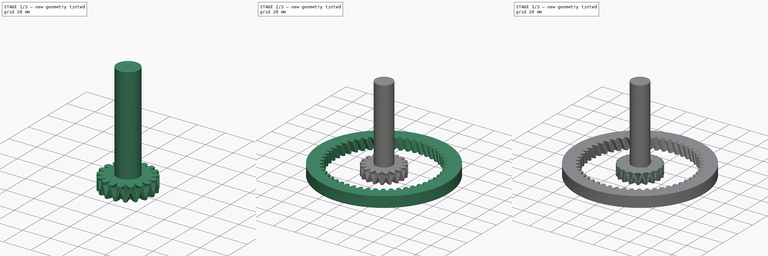
[diagram: build sequence overview — one tinted view per stage of 3, left to right]
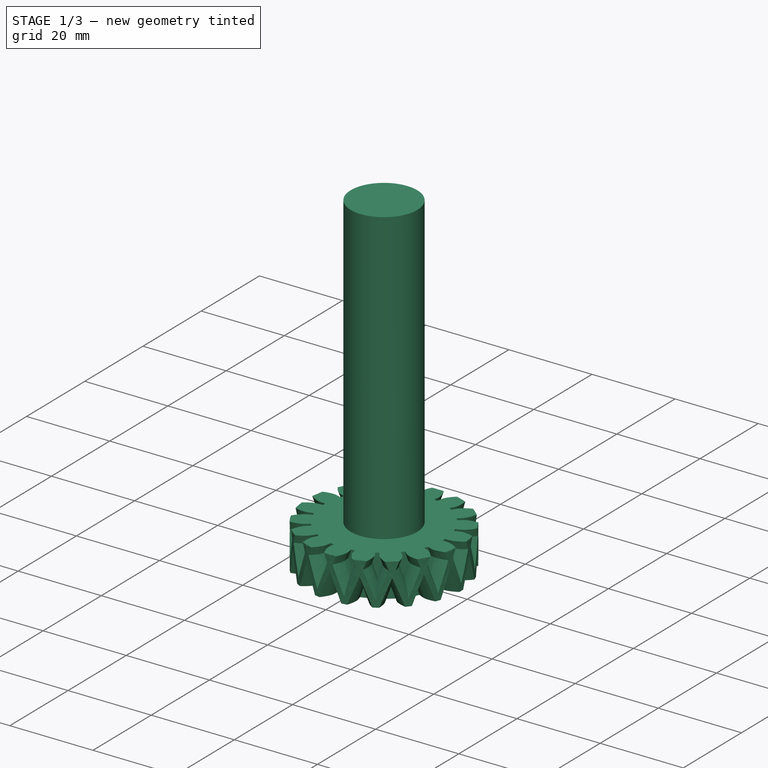
[diagram: stage 1 of 3 — iso view after this stage's code; geometry added in this stage tinted green]
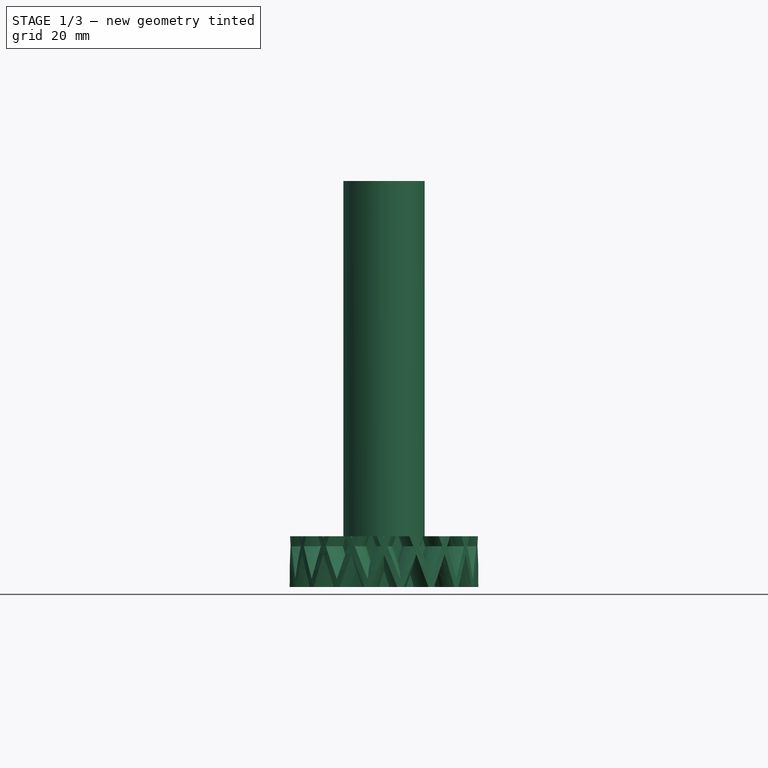
[diagram: stage 1 of 3 — front view after this stage's code; geometry added in this stage tinted green]
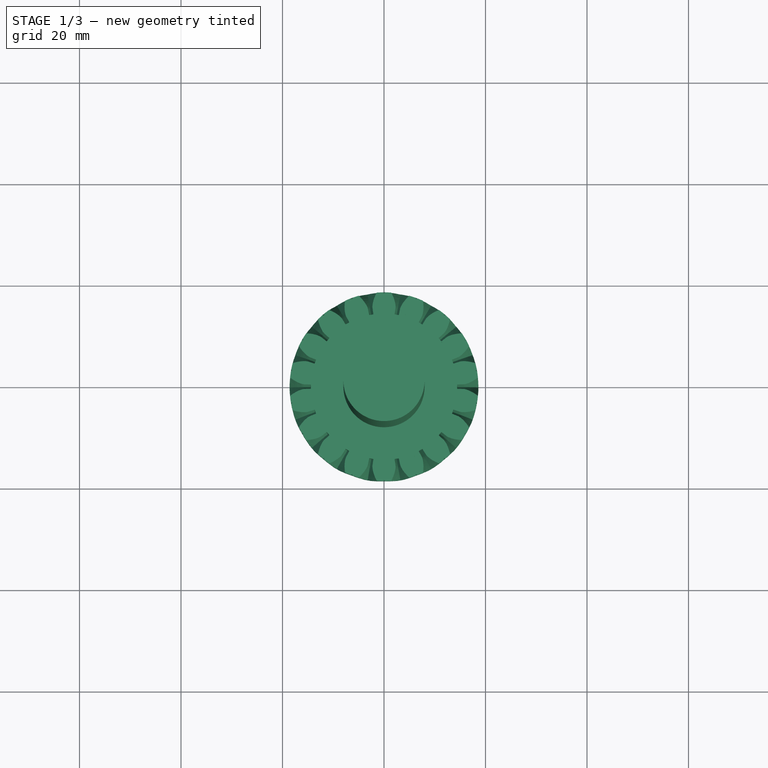
[diagram: stage 1 of 3 — top view after this stage's code; geometry added in this stage tinted green]
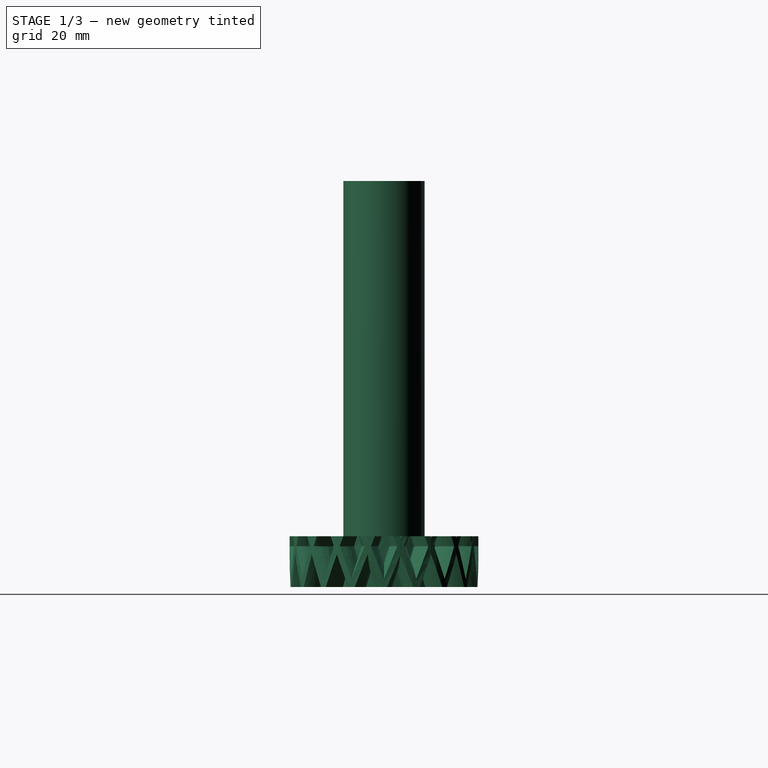
[diagram: stage 1 of 3 — right view after this stage's code; geometry added in this stage tinted green]
FCSTD DOCUMENT  (FreeCAD 0.20R29177 +426 (Git))
Label: project_15
License: All rights reserved
LicenseURL: https://en.wikipedia.org/wiki/All_rights_reserved
objects: PartDesign::CoordinateSystem×12, PartDesign::Body×9, PartDesign::FeaturePython×6, App::DocumentObjectGroup×3, Sketcher::SketchObject×2, App::FeaturePython×1, PartDesign::Pocket×1, App::Part×1, PartDesign::Pad×1
note: 33 computed .brp shape members not serialized (recipe doc carries the construction recipe); baked Part::Feature solids carry a one-line shape summary decoded from their .brp

FEATURE [PartDesign::CoordinateSystem] LCS_Origin
  AttacherType = Attacher::AttachEngine3D
  MapMode = 2
  Support = -> [X_Axis]
FEATURE [App::DocumentObjectGroup] Constraints
FEATURE [App::FeaturePython] Variables  # WARN: FeaturePython — macro-defined, semantics opaque (R4)
  Type = App::PropertyContainer
FEATURE [App::DocumentObjectGroup] Configurations
FEATURE [PartDesign::CoordinateSystem] LCS_Origin001
  AttacherType = Attacher::AttachEngine3D
  MapMode = 2
  Support = -> [X_Axis001]
FEATURE [PartDesign::CoordinateSystem] LCS_Origin002
  AttacherType = Attacher::AttachEngine3D
  MapMode = 2
  Support = -> [X_Axis002]
FEATURE [PartDesign::CoordinateSystem] LCS_Origin003
  AttacherType = Attacher::AttachEngine3D
  MapMode = 2
  Support = -> [X_Axis003]
FEATURE [PartDesign::CoordinateSystem] LCS_Origin004
  AttacherType = Attacher::AttachEngine3D
  MapMode = 2
  Support = -> [X_Axis004]
FEATURE [PartDesign::Body] __plate  label="1-plate"
  Group = -> [LCS_Origin004]
  Origin = -> Origin004
FEATURE [PartDesign::CoordinateSystem] LCS_Origin005
  AttacherType = Attacher::AttachEngine3D
  MapMode = 2
  Support = -> [X_Axis005]
FEATURE [PartDesign::CoordinateSystem] LCS_Origin006
  AttacherType = Attacher::AttachEngine3D
  MapMode = 2
  Support = -> [X_Axis006]
FEATURE [PartDesign::CoordinateSystem] LCS_Origin007
  AttacherType = Attacher::AttachEngine3D
  MapMode = 2
  Support = -> [X_Axis007]
FEATURE [PartDesign::CoordinateSystem] LCS_Origin008
  AttacherType = Attacher::AttachEngine3D
  MapMode = 2
  Support = -> [X_Axis008]
FEATURE [PartDesign::Body] __plate001  label="2-plate"
  Group = -> [LCS_Origin008]
  Origin = -> Origin008
FEATURE [PartDesign::CoordinateSystem] LCS_Origin009
  AttacherType = Attacher::AttachEngine3D
  MapMode = 2
  Support = -> [X_Axis009]
FEATURE [PartDesign::Body] housing
  Group = -> [LCS_Origin009]
  Origin = -> Origin009
FEATURE [PartDesign::FeaturePython] InvoluteGear001  # WARN: FeaturePython — macro-defined, semantics opaque (R4)
  AttacherType = Attacher::AttachEngine3D
  addendum_diameter = 37.2
  angular_backlash = 0
  axle_hole = false
  axle_holesize = 10
  backlash = 0
  clearance = 0.25
  double_helix = false
  head = 0
  head_fillet = 0
  height = 10
  helix_angle = -20
  module = 1.86
  num_teeth = 18
  numpoints = 20
  offset_hole = false
  offset_holeoffset = 10
  offset_holesize = 10
  pitch_diameter = 33.48
  pressure_angle = 20
  properties_from_tool = false
  reversed_backlash = false
  root_diameter = 28.83
  root_fillet = 0
  shift = 0
  simple = false
  transverse_pitch = 5.84336
  traverse_module = 1.86
  undercut = false
  version = 1.3.0
  expr: angular_backlash = backlash / pitch_diameter * 360° / pi
FEATURE [PartDesign::FeaturePython] InvoluteGear  # WARN: FeaturePython — macro-defined, semantics opaque (R4)
  AttacherType = Attacher::AttachEngine3D
  addendum_diameter = 37.2
  angular_backlash = 0
  axle_hole = false
  axle_holesize = 10
  backlash = 0
  clearance = 0.25
  double_helix = false
  head = 0
  head_fillet = 0
  height = 10
  helix_angle = 20
  module = 1.86
  num_teeth = 18
  numpoints = 20
  offset_hole = false
  offset_holeoffset = 10
  offset_holesize = 10
  pitch_diameter = 33.48
  pressure_angle = 20
  properties_from_tool = false
  reversed_backlash = false
  root_diameter = 28.83
  root_fillet = 0
  shift = 0
  simple = false
  transverse_pitch = 5.84336
  traverse_module = 1.86
  undercut = false
  version = 1.3.0
  expr: angular_backlash = backlash / pitch_diameter * 360° / pi
FEATURE [PartDesign::Body] __planet  label="1-planet"
  Group = -> [LCS_Origin001,InvoluteGear,Sketch,Pocket]
  Origin = -> Origin001
  Tip = -> Pocket
FEATURE [PartDesign::CoordinateSystem] __p_c  label="1-p-c"
  AttacherType = Attacher::AttachEngine3D
  MapMode = 11
  Placement = pos=(0,0,0) rot=(0,0,1;1.5708rad)
  Support = -> [Pocket]
FEATURE [App::Part] Assembly
  AssemblyType = Part::Link
  Group = -> [LCS_Origin,Constraints,Variables,Configurations,__p_c]
  Origin = -> Origin
  Type = Assembly
FEATURE [Sketcher::SketchObject] Sketch001
  FullyConstrained = true
  MapMode = 5
  Support = -> [XY_Plane002]
  sketch-geometry (1):
    g0: Circle CenterX=0 CenterY=0 CenterZ=0 NormalX=0 NormalY=0 NormalZ=1 AngleXU=0 Radius=8
  constraints (2):
    c: Coincident(g0,g-1)
    c: Diameter(g0) = 16
FEATURE [PartDesign::Pad] Pad
  BaseFeature = -> InvoluteGear001
  Direction = (0,0,1)
  Length = 80
  Length2 = 10
  Profile = -> Sketch001
  ReferenceAxis = -> Sketch001 [N_Axis]
  Refine = true
  Type = 0
FEATURE [PartDesign::CoordinateSystem] __s_  label="1-s-c"
  AttacherType = Attacher::AttachEngine3D
  MapMode = 11
  Placement = pos=(0,0,80) rot=(0,0,1;1.5708rad)
  Support = -> [Pad]
FEATURE [PartDesign::Body] __sun  label="1-sun"
  Group = -> [LCS_Origin002,InvoluteGear001,Sketch001,Pad,__s_]
  Origin = -> Origin002
  Tip = -> Pad
FEATURE [App::DocumentObjectGroup] Parts
  Group = -> [__planet,__sun,__ring,__plate,__planet001,__sun001,__ring001,__plate001,housing]
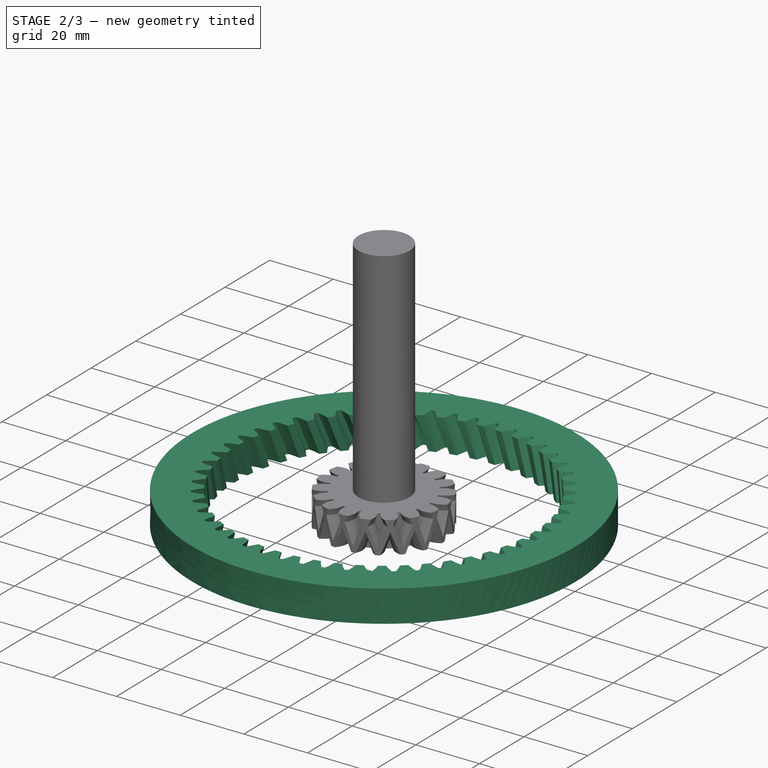
[diagram: stage 2 of 3 — iso view after this stage's code; geometry added in this stage tinted green]
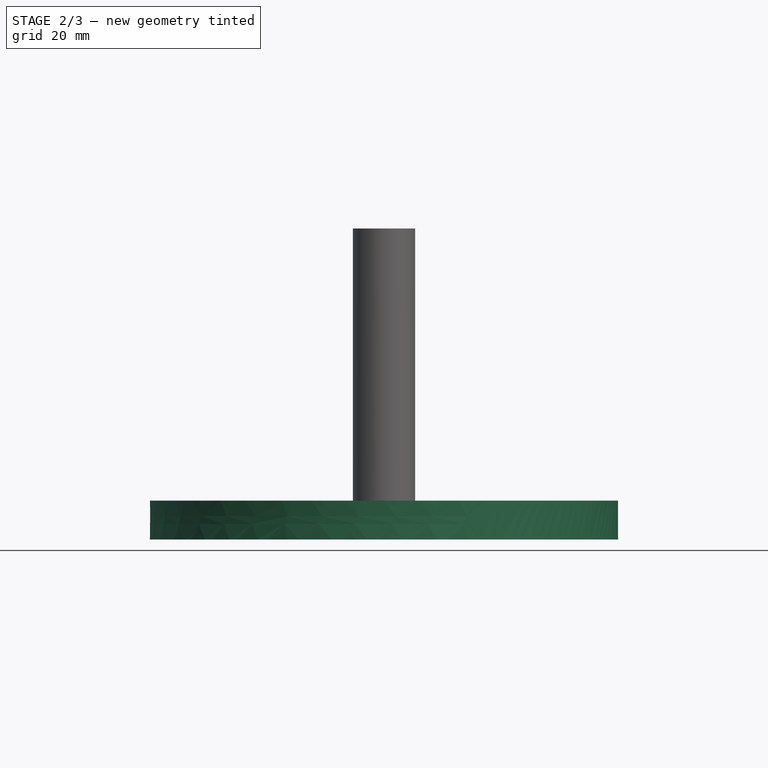
[diagram: stage 2 of 3 — front view after this stage's code; geometry added in this stage tinted green]
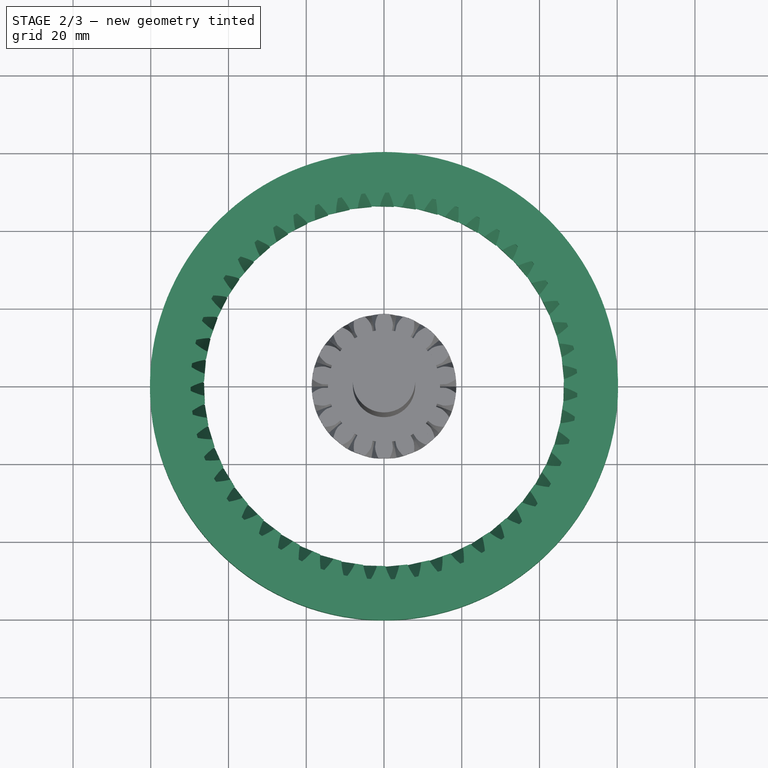
[diagram: stage 2 of 3 — top view after this stage's code; geometry added in this stage tinted green]
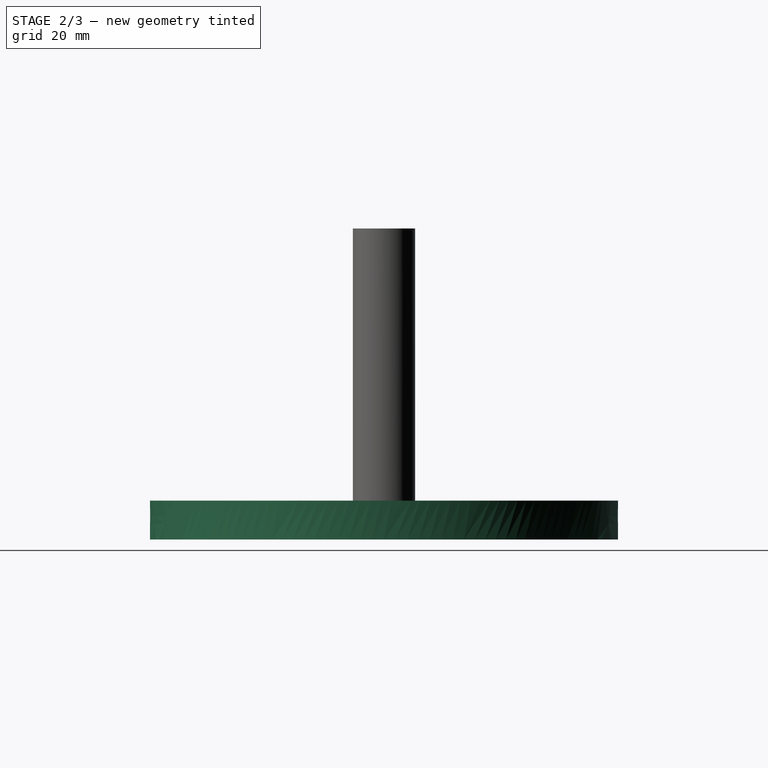
[diagram: stage 2 of 3 — right view after this stage's code; geometry added in this stage tinted green]
FEATURE [PartDesign::Body] __sun001  label="2-sun"
  Group = -> [LCS_Origin006,InvoluteGear003]
  Origin = -> Origin006
  Tip = -> InvoluteGear003
FEATURE [PartDesign::FeaturePython] InternalInvoluteGear001  # WARN: FeaturePython — macro-defined, semantics opaque (R4)
  AttacherType = Attacher::AttachEngine3D
  addendum_diameter = 92.628
  angular_backlash = 0
  backlash = 0
  clearance = 0.25
  double_helix = false
  head = -0.4
  head_fillet = 0
  height = 10
  helix_angle = 20
  module = 1.86
  num_teeth = 51
  numpoints = 20
  outside_diameter = 120.44
  pitch_diameter = 94.86
  pressure_angle = 20
  properties_from_tool = false
  reversed_backlash = false
  root_diameter = 99.51
  root_fillet = 0
  shift = 0
  simple = false
  thickness = 12.79
  transverse_pitch = 5.84336
  version = 1.3.0
  expr: angular_backlash = backlash / pitch_diameter * 360° / pi
FEATURE [PartDesign::Body] __ring001  label="2-ring"
  Group = -> [LCS_Origin007,InternalInvoluteGear001]
  Origin = -> Origin007
  Tip = -> InternalInvoluteGear001
FEATURE [Sketcher::SketchObject] Sketch
  FullyConstrained = true
  MapMode = 5
  Support = -> [XY_Plane001]
  sketch-geometry (1):
    g0: Circle CenterX=0 CenterY=0 CenterZ=0 NormalX=0 NormalY=0 NormalZ=1 AngleXU=0 Radius=3
  constraints (2):
    c: Coincident(g0,g-1)
    c: Diameter(g0) = 6
FEATURE [PartDesign::Pocket] Pocket
  BaseFeature = -> InvoluteGear
  Direction = (0,0,-1)
  Length = 12
  Length2 = 5
  Profile = -> Sketch
  ReferenceAxis = -> Sketch [N_Axis]
  Refine = true
  Reversed = true
  Type = 0
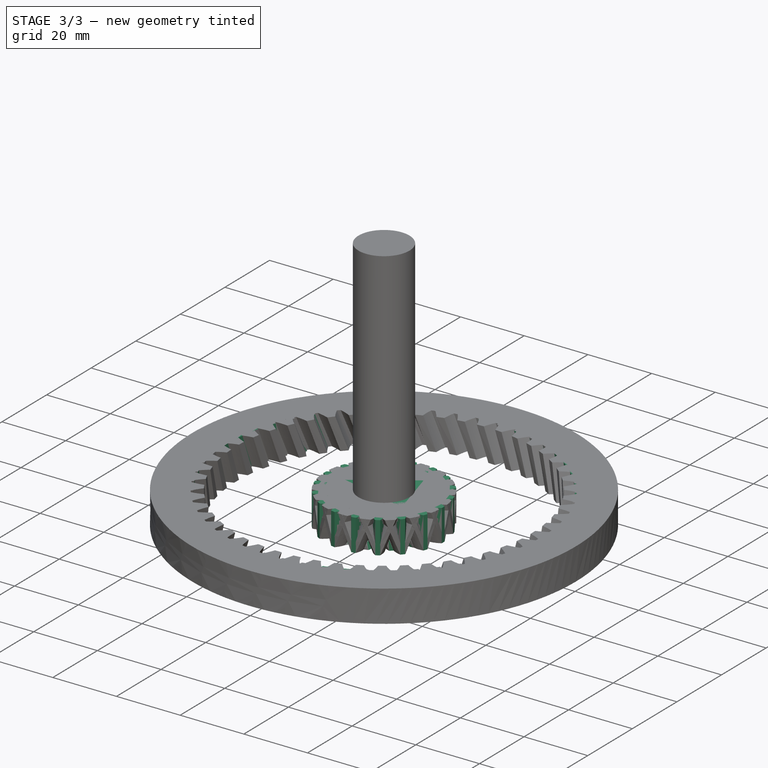
[diagram: stage 3 of 3 — iso view after this stage's code; geometry added in this stage tinted green]
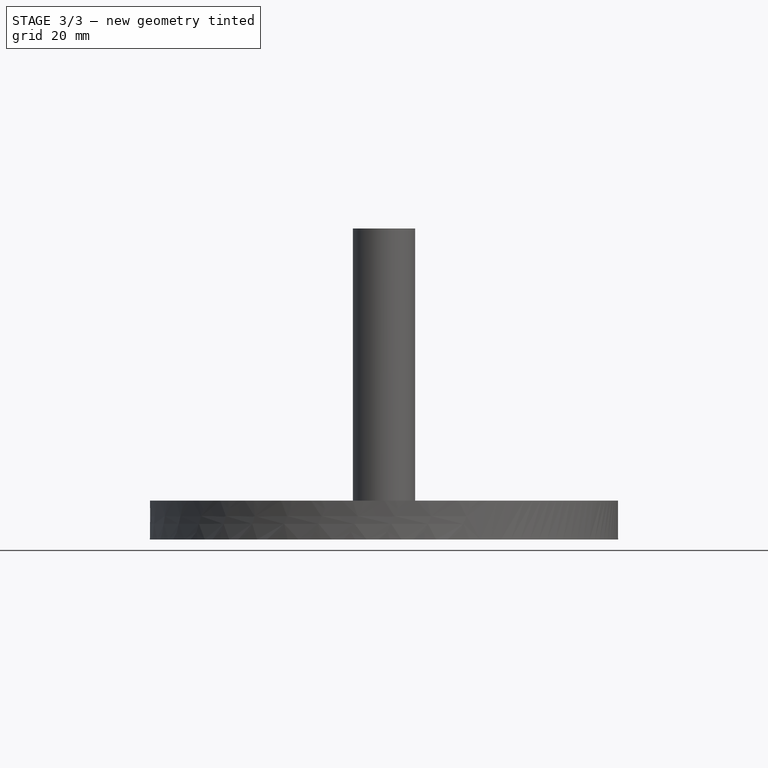
[diagram: stage 3 of 3 — front view after this stage's code; geometry added in this stage tinted green]
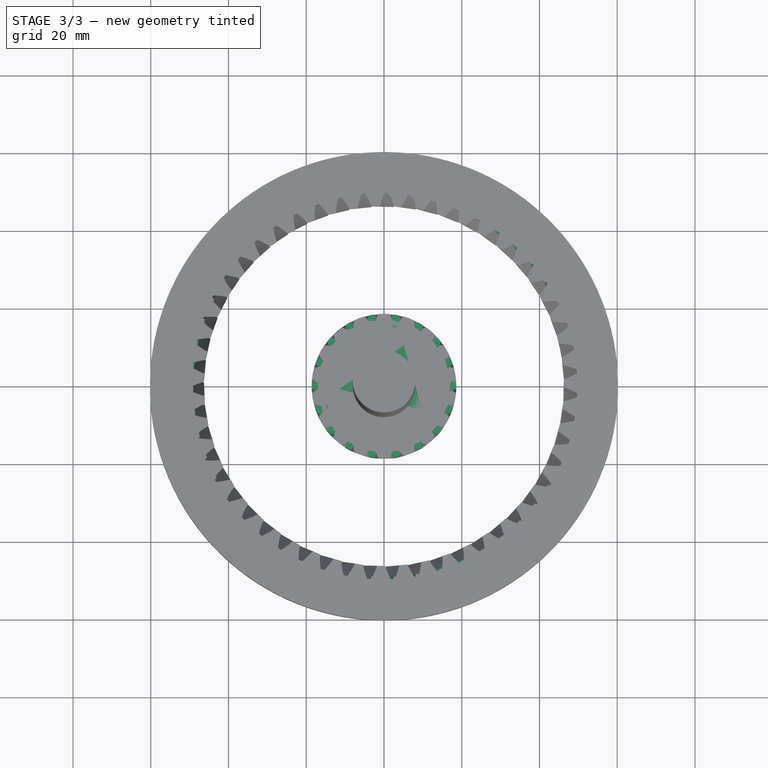
[diagram: stage 3 of 3 — top view after this stage's code; geometry added in this stage tinted green]
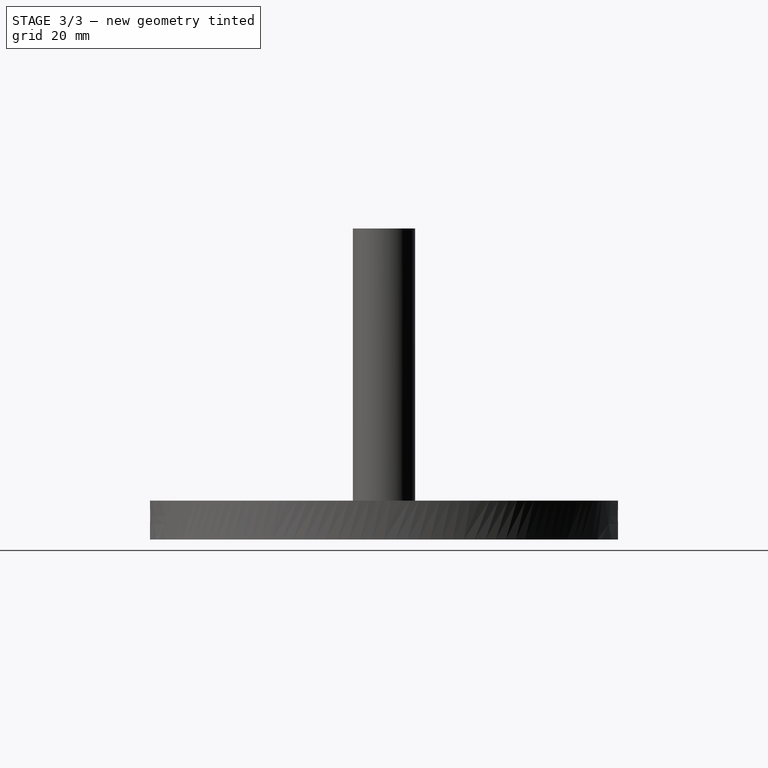
[diagram: stage 3 of 3 — right view after this stage's code; geometry added in this stage tinted green]
FEATURE [PartDesign::FeaturePython] InternalInvoluteGear  # WARN: FeaturePython — macro-defined, semantics opaque (R4)
  AttacherType = Attacher::AttachEngine3D
  addendum_diameter = 98.208
  angular_backlash = 0
  backlash = 0
  clearance = 0.25
  double_helix = false
  head = -0.4
  head_fillet = 0
  height = 10
  helix_angle = 20
  module = 1.86
  num_teeth = 54
  numpoints = 20
  outside_diameter = 120.44
  pitch_diameter = 100.44
  pressure_angle = 20
  properties_from_tool = false
  reversed_backlash = false
  root_diameter = 105.09
  root_fillet = 0
  shift = 0
  simple = false
  thickness = 10
  transverse_pitch = 5.84336
  version = 1.3.0
  expr: angular_backlash = backlash / pitch_diameter * 360° / pi
FEATURE [PartDesign::Body] __ring  label="1-ring"
  Group = -> [LCS_Origin003,InternalInvoluteGear]
  Origin = -> Origin003
  Tip = -> InternalInvoluteGear
FEATURE [PartDesign::FeaturePython] InvoluteGear002  # WARN: FeaturePython — macro-defined, semantics opaque (R4)
  AttacherType = Attacher::AttachEngine3D
  addendum_diameter = 37.2
  angular_backlash = 0
  axle_hole = false
  axle_holesize = 10
  backlash = 0
  clearance = 0.25
  double_helix = false
  head = 0
  head_fillet = 0
  height = 10
  helix_angle = 0
  module = 1.86
  num_teeth = 18
  numpoints = 20
  offset_hole = false
  offset_holeoffset = 10
  offset_holesize = 10
  pitch_diameter = 33.48
  pressure_angle = 20
  properties_from_tool = false
  reversed_backlash = false
  root_diameter = 28.83
  root_fillet = 0
  shift = 0
  simple = false
  transverse_pitch = 5.84336
  traverse_module = 1.86
  undercut = false
  version = 1.3.0
  expr: angular_backlash = backlash / pitch_diameter * 360° / pi
FEATURE [PartDesign::Body] __planet001  label="2-planet"
  Group = -> [LCS_Origin005,InvoluteGear002]
  Origin = -> Origin005
  Tip = -> InvoluteGear002
FEATURE [PartDesign::FeaturePython] InvoluteGear003  # WARN: FeaturePython — macro-defined, semantics opaque (R4)
  AttacherType = Attacher::AttachEngine3D
  addendum_diameter = 31.62
  angular_backlash = 0
  axle_hole = false
  axle_holesize = 10
  backlash = 0
  clearance = 0.25
  double_helix = false
  head = 0
  head_fillet = 0
  height = 10
  helix_angle = -20
  module = 1.86
  num_teeth = 15
  numpoints = 20
  offset_hole = false
  offset_holeoffset = 10
  offset_holesize = 10
  pitch_diameter = 27.9
  pressure_angle = 20
  properties_from_tool = false
  reversed_backlash = false
  root_diameter = 23.25
  root_fillet = 0
  shift = 0
  simple = false
  transverse_pitch = 5.84336
  traverse_module = 1.86
  undercut = false
  version = 1.3.0
  expr: angular_backlash = backlash / pitch_diameter * 360° / pi
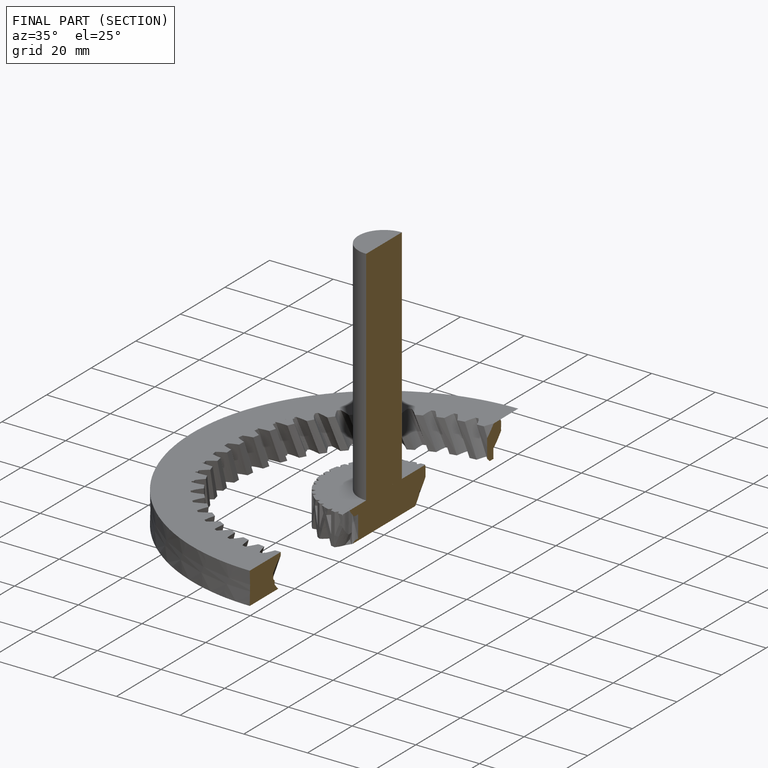
[diagram: finished part — half-section view (interior)]
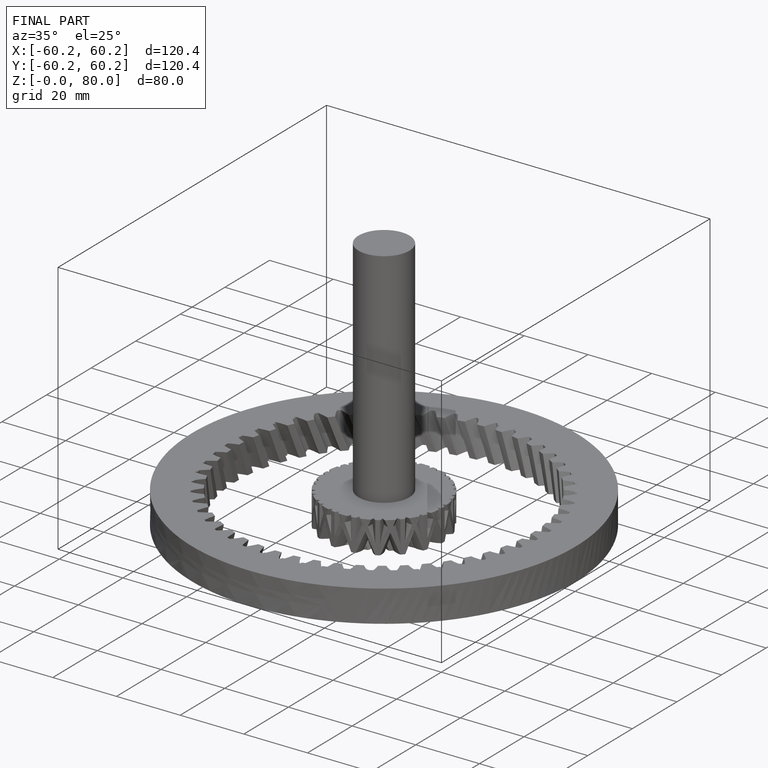
[diagram: finished part — iso view with bounding-box wireframe]
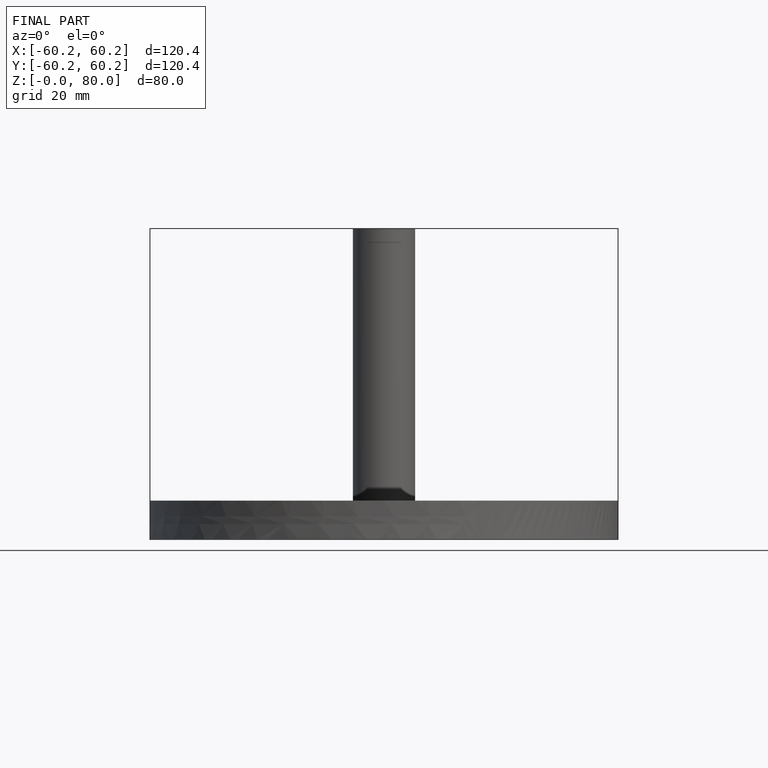
[diagram: finished part — front view with bounding-box wireframe]
